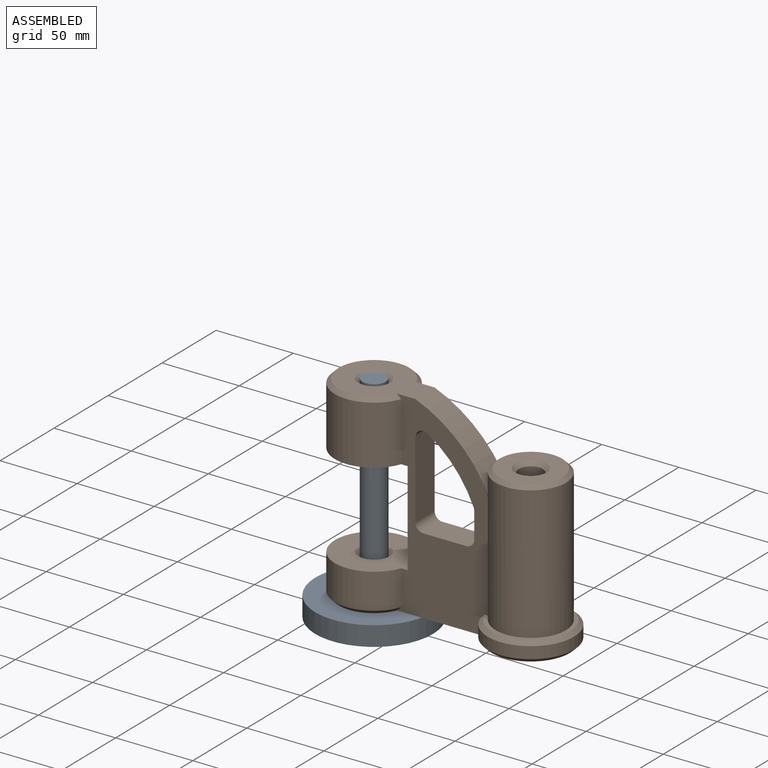
[diagram: assembled view]
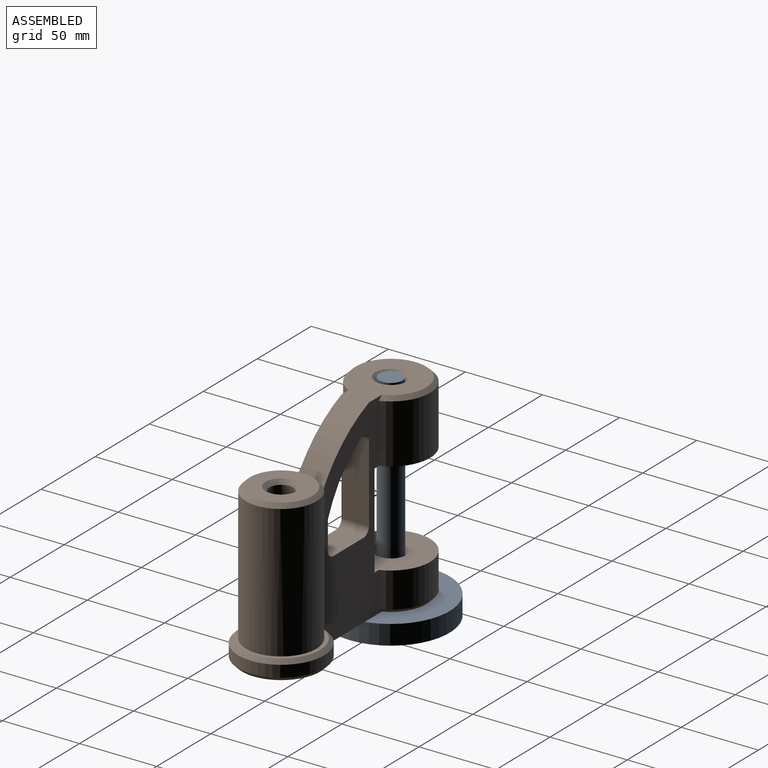
[diagram: assembled view, second angle]
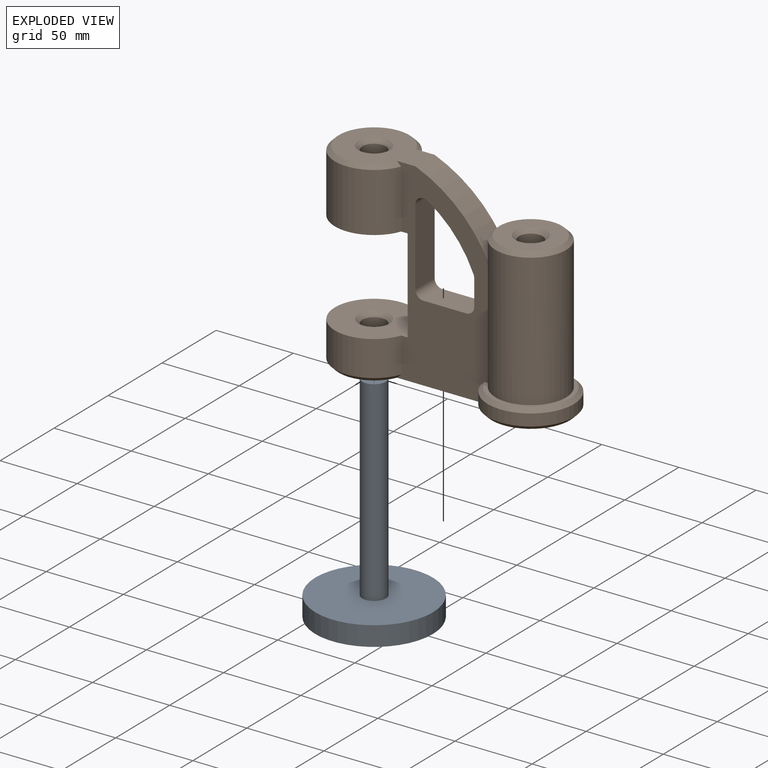
[diagram: exploded view]
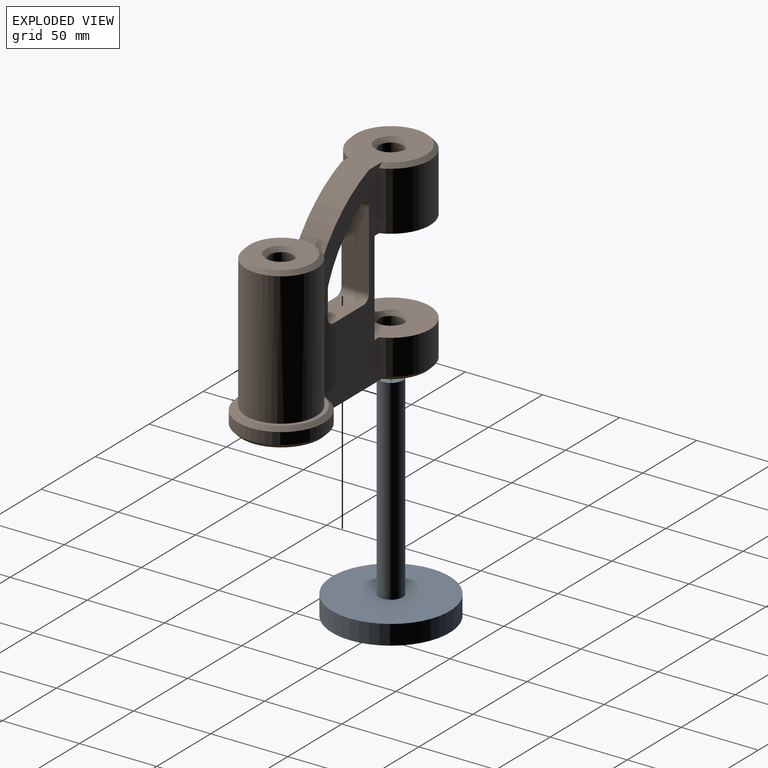
[diagram: exploded view, second angle]
ASSEMBLY  parts=2 mates=2
PART A: 5 faces, bbox 76.2x76.2x139.7 mm
  f0: cylinder r=7.62mm len=127mm, axis (0,0,-1), area 6080.5mm2, adj f1,f3
  f1: plane 15.24x15.24mm, normal (0,0,1), area 182.4mm2, adj f0
  f2: cylinder r=38.1mm len=76.2mm, axis (0,0,-1), area 3040.2mm2, adj f3,f4
  f3: plane 76.2x76.2mm, normal (0,0,1), area 4378mm2, adj f0,f2
  f4: plane 76.2x76.2mm, normal (0,0,-1), area 4560.4mm2, adj f2
PART B: 36 faces, bbox 155x55.9x127.1 mm
  f0: plane 127.06x59.53mm, normal (0,-1,0), area 4300.3mm2, adj f3,f5,f6,f7,f9,f11,f12,f13
  f1: plane 127.06x59.53mm, normal (0,1,0), area 4300.3mm2, adj f3,f5,f6,f7,f9,f11,f12,f13
  f2: cylinder r=7.62mm len=35.56mm, axis (0,0,-1), area 1702.5mm2, adj f24,f27
  f3: cylinder r=25.4mm len=50.8mm, axis (0,0,-1), area 5388.4mm2, adj f0,f1,f18,f28
  f4: cylinder r=7.62mm len=20.32mm, axis (0,0,-1), area 972.9mm2, adj f23,f26
  f5: cylinder r=25.4mm len=50.8mm, axis (0,0,-1), area 3233.1mm2, adj f0,f1,f17,f25
  f6: plane 55.88x45.72mm, normal (0,0,1), area 1508.6mm2, adj f0,f1,f11,f27,f28
  f7: plane 149.86x50.8mm, normal (0,0,-1), area 3988.3mm2, adj f0,f1,f23,f25,f34,f35
  f8: cylinder r=7.62mm len=96.52mm, axis (0,0,-1), area 4621.2mm2, adj f33,f35
  f9: cylinder r=22.86mm len=86.36mm, axis (0,0,-1), area 11079.6mm2, adj f0,f1,f11,f29,f31
  f10: plane 40.64x40.64mm, normal (0,0,1), area 972.9mm2, adj f31,f33
  f11: cylinder r=88.9mm len=47.52mm, axis (0,1,0), area 1132.6mm2, adj f0,f1,f6,f9
  f12: plane 17.78x17.02mm, normal (-1,0,0), area 302.5mm2, adj f0,f1,f19,f22
  f13: plane 27.94x17.78mm, normal (0,0,1), area 496.8mm2, adj f0,f1,f19,f20
  f14: plane 49.87x17.78mm, normal (1,0,0), area 886.6mm2, adj f0,f1,f20,f21
  f15: cylinder r=76.2mm len=35.2mm, axis (0,1,0), area 834.7mm2, adj f0,f1,f21,f22
  f16: plane 60.96x17.78mm, normal (-1,0,0), area 1083.9mm2, adj f0,f1,f17,f18
  f17: plane 53.34x50.8mm, normal (0,0,1), area 1757.1mm2, adj f0,f1,f5,f16,f26
  f18: plane 53.34x50.8mm, normal (0,0,-1), area 1757.1mm2, adj f0,f1,f3,f16,f24
  f19: cylinder r=5.08mm len=17.78mm, axis (0,-1,0), area 141.9mm2, adj f0,f1,f12,f13
  f20: cylinder r=5.08mm len=17.78mm, axis (0,-1,0), area 141.9mm2, adj f0,f1,f13,f14
  f21: cylinder r=5.08mm len=17.78mm, axis (0,1,0), area 192.3mm2, adj f0,f1,f14,f15
  f22: cylinder r=5.08mm len=17.78mm, axis (0,1,0), area 35.8mm2, adj f0,f1,f12,f15
  f23: cone r=10.16mm half-angle=45deg, axis (0,0,-1), area 200.6mm2, adj f4,f7
  f24: cone r=7.62mm half-angle=45deg, axis (0,0,-1), area 200.6mm2, adj f2,f18
  f25: cone r=25.4mm half-angle=45deg, axis (0,0,1), area 479.1mm2, adj f0,f1,f5,f7
  f26: cone r=10.16mm half-angle=45deg, axis (0,0,1), area 200.6mm2, adj f4,f17
  f27: cone r=7.62mm half-angle=45deg, axis (0,0,1), area 200.6mm2, adj f2,f6
  f28: cone r=22.86mm half-angle=45deg, axis (0,0,-1), area 479.1mm2, adj f0,f1,f3,f6
  f29: plane 50.8x49.19mm, normal (0,0,1), area 338.8mm2, adj f0,f1,f9,f32
  f30: cylinder r=27.94mm len=55.88mm, axis (0,0,-1), area 1199.8mm2, adj f0,f1,f32,f34
  f31: cone r=20.32mm half-angle=45deg, axis (0,0,-1), area 487.3mm2, adj f9,f10
  f32: cone r=25.4mm half-angle=45deg, axis (0,0,-1), area 536.7mm2, adj f0,f1,f29,f30
  f33: cone r=7.62mm half-angle=45deg, axis (0,0,1), area 200.6mm2, adj f8,f10
  f34: cone r=27.94mm half-angle=45deg, axis (0,0,1), area 536.7mm2, adj f0,f1,f7,f30
  f35: cone r=10.16mm half-angle=45deg, axis (0,0,-1), area 200.6mm2, adj f7,f8
PLACE A t=(-20.65,47.38,-69.7)mm fixed
PLACE B t=(-20.65,47.38,-57)mm
MATE planar A.f0 <-> B.f2  axis (0,0,1) through (-20.65,47.38,-57)mm
MATE slider B.f2 <-> A.f0  axis (0,0,-1) through (-20.65,47.38,67.46)mm
